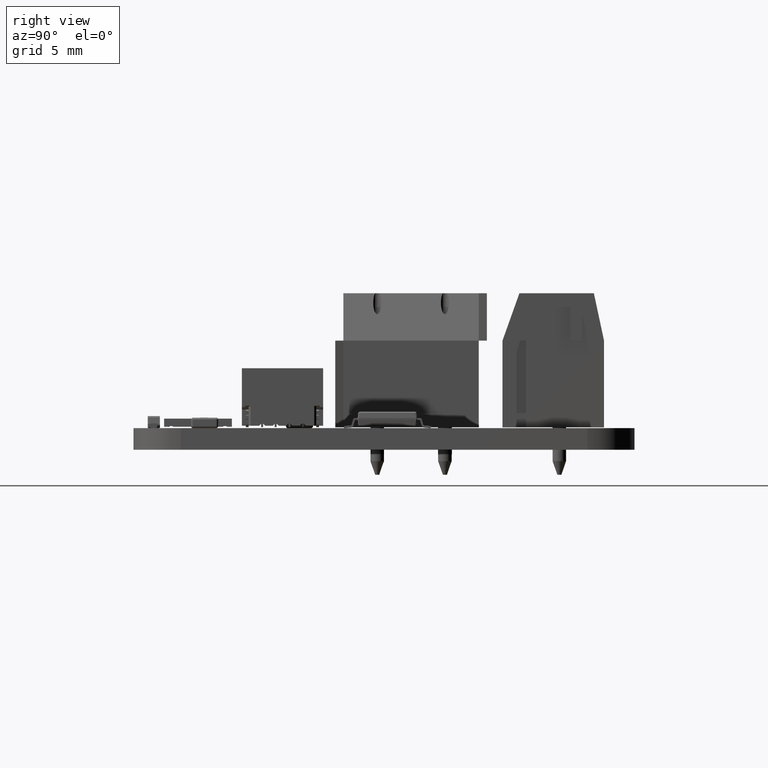
[diagram: clean part render]
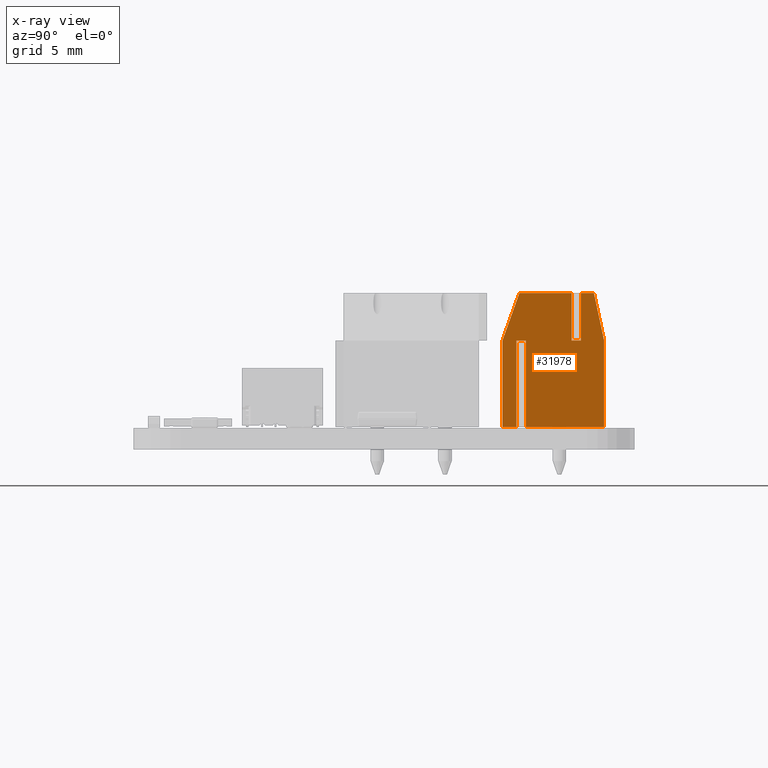
[diagram: x-ray — body ghosted, one internal face saturated and labeled with its STEP entity id]
A machine part, right view, then the same camera in x-ray: the body is ghosted and one INTERNAL B-rep face — a face not visible from any outside direction — is saturated and labeled: STEP entity #31978.
In plain terms, the highlighted planar face has unit normal (1, 0, 0).
Its self-contained STEP definition (entity closure, byte-faithful):
#31978 = ADVANCED_FACE('',(#31979),#32093,.F.);
#31979 = FACE_BOUND('',#31980,.T.);
#31980 = EDGE_LOOP('',(#31981,#31991,#31999,#32007,#32015,#32023,#32031,
    #32039,#32047,#32055,#32063,#32071,#32079,#32087));
#31981 = ORIENTED_EDGE('',*,*,#31982,.F.);
#31982 = EDGE_CURVE('',#31983,#31985,#31987,.T.);
#31983 = VERTEX_POINT('',#31984);
#31984 = CARTESIAN_POINT('',(5.,2.025,1.45));
#31985 = VERTEX_POINT('',#31986);
#31986 = CARTESIAN_POINT('',(5.,2.025,-4.95));
#31987 = LINE('',#31988,#31989);
#31988 = CARTESIAN_POINT('',(5.,2.025,1.45));
#31989 = VECTOR('',#31990,1.);
#31990 = DIRECTION('',(0.,1.156482317318E-16,-1.));
#31991 = ORIENTED_EDGE('',*,*,#31992,.F.);
#31992 = EDGE_CURVE('',#31993,#31983,#31995,.T.);
#31993 = VERTEX_POINT('',#31994);
#31994 = CARTESIAN_POINT('',(5.,2.725,1.45));
#31995 = LINE('',#31996,#31997);
#31996 = CARTESIAN_POINT('',(5.,2.725,1.45));
#31997 = VECTOR('',#31998,1.);
#31998 = DIRECTION('',(0.,-1.,-1.156482317318E-16));
#31999 = ORIENTED_EDGE('',*,*,#32000,.T.);
#32000 = EDGE_CURVE('',#31993,#32001,#32003,.T.);
#32001 = VERTEX_POINT('',#32002);
#32002 = CARTESIAN_POINT('',(5.,2.725,-4.95));
#32003 = LINE('',#32004,#32005);
#32004 = CARTESIAN_POINT('',(5.,2.725,1.45));
#32005 = VECTOR('',#32006,1.);
#32006 = DIRECTION('',(0.,1.156482317318E-16,-1.));
#32007 = ORIENTED_EDGE('',*,*,#32008,.F.);
#32008 = EDGE_CURVE('',#32009,#32001,#32011,.T.);
#32009 = VERTEX_POINT('',#32010);
#32010 = CARTESIAN_POINT('',(5.,3.75,-4.95));
#32011 = LINE('',#32012,#32013);
#32012 = CARTESIAN_POINT('',(5.,3.75,-4.95));
#32013 = VECTOR('',#32014,1.);
#32014 = DIRECTION('',(0.,-1.,-1.156482317318E-16));
#32015 = ORIENTED_EDGE('',*,*,#32016,.F.);
#32016 = EDGE_CURVE('',#32017,#32009,#32019,.T.);
#32017 = VERTEX_POINT('',#32018);
#32018 = CARTESIAN_POINT('',(5.,3.75,1.45));
#32019 = LINE('',#32020,#32021);
#32020 = CARTESIAN_POINT('',(5.,3.75,4.95));
#32021 = VECTOR('',#32022,1.);
#32022 = DIRECTION('',(0.,1.314184451498E-16,-1.));
#32023 = ORIENTED_EDGE('',*,*,#32024,.F.);
#32024 = EDGE_CURVE('',#32025,#32017,#32027,.T.);
#32025 = VERTEX_POINT('',#32026);
#32026 = CARTESIAN_POINT('',(5.,2.5,4.95));
#32027 = LINE('',#32028,#32029);
#32028 = CARTESIAN_POINT('',(5.,2.5,4.95));
#32029 = VECTOR('',#32030,1.);
#32030 = DIRECTION('',(0.,0.336336396998,-0.941741911595));
#32031 = ORIENTED_EDGE('',*,*,#32032,.F.);
#32032 = EDGE_CURVE('',#32033,#32025,#32035,.T.);
#32033 = VERTEX_POINT('',#32034);
#32034 = CARTESIAN_POINT('',(5.,-1.35,4.95));
#32035 = LINE('',#32036,#32037);
#32036 = CARTESIAN_POINT('',(5.,-3.75,4.95));
#32037 = VECTOR('',#32038,1.);
#32038 = DIRECTION('',(0.,1.,3.469446951954E-16));
#32039 = ORIENTED_EDGE('',*,*,#32040,.F.);
#32040 = EDGE_CURVE('',#32041,#32033,#32043,.T.);
#32041 = VERTEX_POINT('',#32042);
#32042 = CARTESIAN_POINT('',(5.,-1.35,1.45));
#32043 = LINE('',#32044,#32045);
#32044 = CARTESIAN_POINT('',(5.,-1.35,1.45));
#32045 = VECTOR('',#32046,1.);
#32046 = DIRECTION('',(0.,-3.469446951954E-16,1.));
#32047 = ORIENTED_EDGE('',*,*,#32048,.F.);
#32048 = EDGE_CURVE('',#32049,#32041,#32051,.T.);
#32049 = VERTEX_POINT('',#32050);
#32050 = CARTESIAN_POINT('',(5.,-2.05,1.45));
#32051 = LINE('',#32052,#32053);
#32052 = CARTESIAN_POINT('',(5.,-2.05,1.45));
#32053 = VECTOR('',#32054,1.);
#32054 = DIRECTION('',(0.,1.,3.469446951954E-16));
#32055 = ORIENTED_EDGE('',*,*,#32056,.T.);
#32056 = EDGE_CURVE('',#32049,#32057,#32059,.T.);
#32057 = VERTEX_POINT('',#32058);
#32058 = CARTESIAN_POINT('',(5.,-2.05,4.95));
#32059 = LINE('',#32060,#32061);
#32060 = CARTESIAN_POINT('',(5.,-2.05,1.45));
#32061 = VECTOR('',#32062,1.);
#32062 = DIRECTION('',(0.,-3.469446951954E-16,1.));
#32063 = ORIENTED_EDGE('',*,*,#32064,.F.);
#32064 = EDGE_CURVE('',#32065,#32057,#32067,.T.);
#32065 = VERTEX_POINT('',#32066);
#32066 = CARTESIAN_POINT('',(5.,-3.,4.95));
#32067 = LINE('',#32068,#32069);
#32068 = CARTESIAN_POINT('',(5.,-3.75,4.95));
#32069 = VECTOR('',#32070,1.);
#32070 = DIRECTION('',(0.,1.,3.469446951954E-16));
#32071 = ORIENTED_EDGE('',*,*,#32072,.F.);
#32072 = EDGE_CURVE('',#32073,#32065,#32075,.T.);
#32073 = VERTEX_POINT('',#32074);
#32074 = CARTESIAN_POINT('',(5.,-3.75,1.45));
#32075 = LINE('',#32076,#32077);
#32076 = CARTESIAN_POINT('',(5.,-3.75,1.45));
#32077 = VECTOR('',#32078,1.);
#32078 = DIRECTION('',(0.,0.209529088731,0.977802414077));
#32079 = ORIENTED_EDGE('',*,*,#32080,.F.);
#32080 = EDGE_CURVE('',#32081,#32073,#32083,.T.);
#32081 = VERTEX_POINT('',#32082);
#32082 = CARTESIAN_POINT('',(5.,-3.75,-4.95));
#32083 = LINE('',#32084,#32085);
#32084 = CARTESIAN_POINT('',(5.,-3.75,-4.95));
#32085 = VECTOR('',#32086,1.);
#32086 = DIRECTION('',(0.,-1.314184451498E-16,1.));
#32087 = ORIENTED_EDGE('',*,*,#32088,.F.);
#32088 = EDGE_CURVE('',#31985,#32081,#32089,.T.);
#32089 = LINE('',#32090,#32091);
#32090 = CARTESIAN_POINT('',(5.,3.75,-4.95));
#32091 = VECTOR('',#32092,1.);
#32092 = DIRECTION('',(0.,-1.,-1.156482317318E-16));
#32093 = PLANE('',#32094);
#32094 = AXIS2_PLACEMENT_3D('',#32095,#32096,#32097);
#32095 = CARTESIAN_POINT('',(5.,0.,0.));
#32096 = DIRECTION('',(-1.,0.,0.));
#32097 = DIRECTION('',(0.,0.,1.));